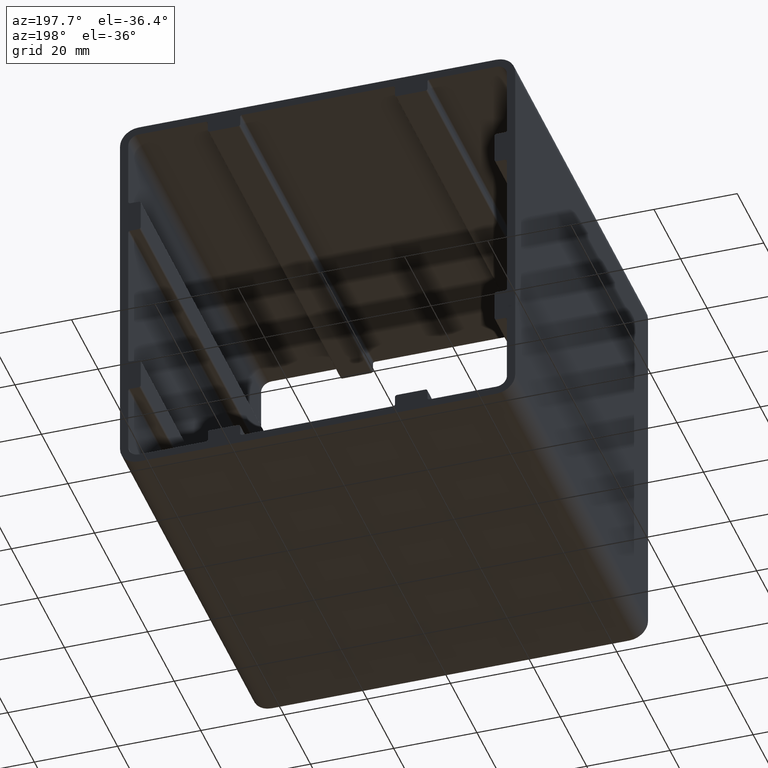
[diagram: clean part render]
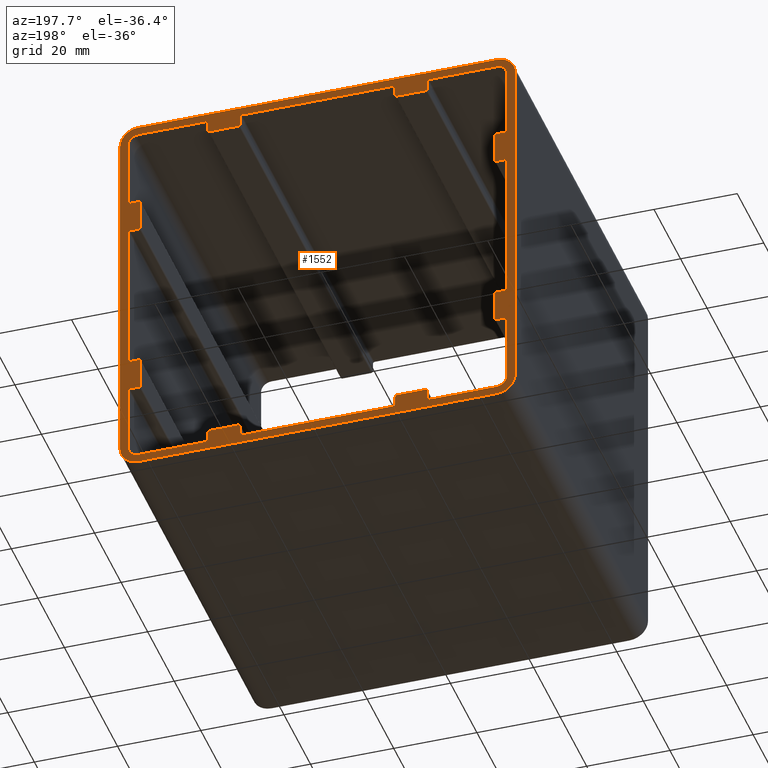
[diagram: same view with one face highlighted and labeled with its STEP entity id]
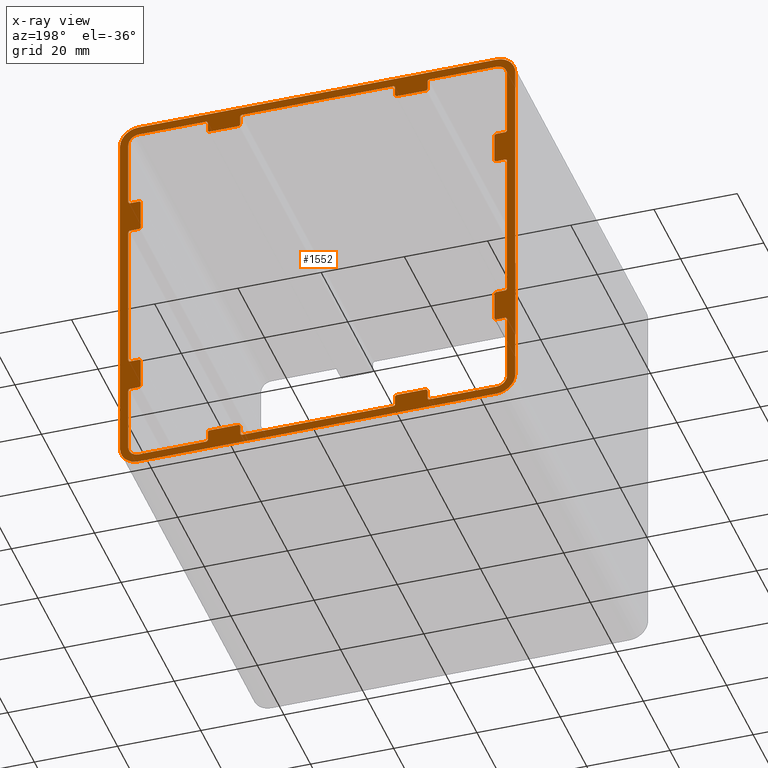
[diagram: x-ray of the same camera — body ghosted, the highlighted face saturated]
A machine part, auxiliary view. The second image highlights one B-rep face of the part: STEP entity #1552.
The next image is the same camera in x-ray: the body ghosted, the highlighted face saturated — about 0% of this face is hidden behind the body in this view.
In plain terms, the highlighted planar face has unit normal (0, 1, 0).
Its self-contained STEP definition (entity closure, byte-faithful):
#16=FACE_BOUND('',#150,.T.);
#20=PLANE('',#1698);
#66=FACE_OUTER_BOUND('',#149,.T.);
#149=EDGE_LOOP('',(#1129,#1130,#1131,#1132,#1133,#1134,#1135,#1136));
#150=EDGE_LOOP('',(#1137,#1138,#1139,#1140,#1141,#1142,#1143,#1144,#1145,
#1146,#1147,#1148,#1149,#1150,#1151,#1152,#1153,#1154,#1155,#1156,#1157,
#1158,#1159,#1160,#1161,#1162,#1163,#1164,#1165,#1166,#1167,#1168,#1169,
#1170,#1171,#1172,#1173,#1174,#1175,#1176,#1177,#1178,#1179,#1180,#1181,
#1182,#1183,#1184,#1185,#1186,#1187,#1188,#1189,#1190,#1191,#1192,#1193,
#1194,#1195,#1196,#1197,#1198,#1199,#1200,#1201,#1202,#1203,#1204,#1205,
#1206,#1207,#1208));
#229=LINE('',#2310,#389);
#271=LINE('',#2475,#431);
#275=LINE('',#2486,#435);
#276=LINE('',#2487,#436);
#277=LINE('',#2492,#437);
#278=LINE('',#2496,#438);
#279=LINE('',#2500,#439);
#280=LINE('',#2504,#440);
#281=LINE('',#2508,#441);
#282=LINE('',#2512,#442);
#283=LINE('',#2516,#443);
#284=LINE('',#2520,#444);
#285=LINE('',#2524,#445);
#286=LINE('',#2528,#446);
#287=LINE('',#2532,#447);
#288=LINE('',#2536,#448);
#289=LINE('',#2540,#449);
#290=LINE('',#2544,#450);
#291=LINE('',#2548,#451);
#292=LINE('',#2552,#452);
#293=LINE('',#2556,#453);
#294=LINE('',#2560,#454);
#295=LINE('',#2564,#455);
#296=LINE('',#2568,#456);
#297=LINE('',#2572,#457);
#298=LINE('',#2576,#458);
#299=LINE('',#2580,#459);
#300=LINE('',#2584,#460);
#301=LINE('',#2588,#461);
#302=LINE('',#2592,#462);
#303=LINE('',#2596,#463);
#304=LINE('',#2600,#464);
#305=LINE('',#2604,#465);
#306=LINE('',#2608,#466);
#307=LINE('',#2612,#467);
#308=LINE('',#2616,#468);
#309=LINE('',#2620,#469);
#310=LINE('',#2624,#470);
#311=LINE('',#2628,#471);
#312=LINE('',#2631,#472);
#389=VECTOR('',#1823,10.);
#431=VECTOR('',#1951,10.);
#435=VECTOR('',#1965,10.);
#436=VECTOR('',#1966,10.);
#437=VECTOR('',#1969,10.);
#438=VECTOR('',#1972,10.);
#439=VECTOR('',#1975,10.);
#440=VECTOR('',#1978,10.);
#441=VECTOR('',#1981,10.);
#442=VECTOR('',#1984,10.);
#443=VECTOR('',#1987,10.);
#444=VECTOR('',#1990,10.);
#445=VECTOR('',#1993,10.);
#446=VECTOR('',#1996,10.);
#447=VECTOR('',#1999,10.);
#448=VECTOR('',#2002,10.);
#449=VECTOR('',#2005,10.);
#450=VECTOR('',#2008,10.);
#451=VECTOR('',#2011,10.);
#452=VECTOR('',#2014,10.);
#453=VECTOR('',#2017,10.);
#454=VECTOR('',#2020,10.);
#455=VECTOR('',#2023,10.);
#456=VECTOR('',#2026,10.);
#457=VECTOR('',#2029,10.);
#458=VECTOR('',#2032,10.);
#459=VECTOR('',#2035,10.);
#460=VECTOR('',#2038,10.);
#461=VECTOR('',#2041,10.);
#462=VECTOR('',#2044,10.);
#463=VECTOR('',#2047,10.);
#464=VECTOR('',#2050,10.);
#465=VECTOR('',#2053,10.);
#466=VECTOR('',#2056,10.);
#467=VECTOR('',#2059,10.);
#468=VECTOR('',#2062,10.);
#469=VECTOR('',#2065,10.);
#470=VECTOR('',#2068,10.);
#471=VECTOR('',#2071,10.);
#472=VECTOR('',#2074,10.);
#545=CIRCLE('',#1648,4.5);
#586=CIRCLE('',#1692,4.5);
#587=CIRCLE('',#1695,4.5);
#588=CIRCLE('',#1697,4.5);
#589=CIRCLE('',#1699,0.5);
#590=CIRCLE('',#1700,0.5);
#591=CIRCLE('',#1701,0.5);
#592=CIRCLE('',#1702,2.5);
#593=CIRCLE('',#1703,0.5);
#594=CIRCLE('',#1704,0.5);
#595=CIRCLE('',#1705,0.5);
#596=CIRCLE('',#1706,0.5);
#597=CIRCLE('',#1707,0.5);
#598=CIRCLE('',#1708,0.5);
#599=CIRCLE('',#1709,0.5);
#600=CIRCLE('',#1710,0.5);
#601=CIRCLE('',#1711,2.5);
#602=CIRCLE('',#1712,0.5);
#603=CIRCLE('',#1713,0.5);
#604=CIRCLE('',#1714,0.5);
#605=CIRCLE('',#1715,0.5);
#606=CIRCLE('',#1716,0.5);
#607=CIRCLE('',#1717,0.5);
#608=CIRCLE('',#1718,0.5);
#609=CIRCLE('',#1719,0.5);
#610=CIRCLE('',#1720,2.5);
#611=CIRCLE('',#1721,0.5);
#612=CIRCLE('',#1722,0.5);
#613=CIRCLE('',#1723,0.5);
#614=CIRCLE('',#1724,0.5);
#615=CIRCLE('',#1725,0.5);
#616=CIRCLE('',#1726,0.5);
#617=CIRCLE('',#1727,0.5);
#618=CIRCLE('',#1728,0.5);
#619=CIRCLE('',#1729,2.5);
#620=CIRCLE('',#1730,0.5);
#621=CIRCLE('',#1731,0.5);
#622=CIRCLE('',#1732,0.5);
#623=CIRCLE('',#1733,0.5);
#624=CIRCLE('',#1734,0.5);
#625=VERTEX_POINT('',#2297);
#626=VERTEX_POINT('',#2298);
#630=VERTEX_POINT('',#2308);
#708=VERTEX_POINT('',#2468);
#709=VERTEX_POINT('',#2469);
#710=VERTEX_POINT('',#2474);
#711=VERTEX_POINT('',#2478);
#712=VERTEX_POINT('',#2482);
#713=VERTEX_POINT('',#2488);
#714=VERTEX_POINT('',#2489);
#715=VERTEX_POINT('',#2491);
#716=VERTEX_POINT('',#2493);
#717=VERTEX_POINT('',#2495);
#718=VERTEX_POINT('',#2497);
#719=VERTEX_POINT('',#2499);
#720=VERTEX_POINT('',#2501);
#721=VERTEX_POINT('',#2503);
#722=VERTEX_POINT('',#2505);
#723=VERTEX_POINT('',#2507);
#724=VERTEX_POINT('',#2509);
#725=VERTEX_POINT('',#2511);
#726=VERTEX_POINT('',#2513);
#727=VERTEX_POINT('',#2515);
#728=VERTEX_POINT('',#2517);
#729=VERTEX_POINT('',#2519);
#730=VERTEX_POINT('',#2521);
#731=VERTEX_POINT('',#2523);
#732=VERTEX_POINT('',#2525);
#733=VERTEX_POINT('',#2527);
#734=VERTEX_POINT('',#2529);
#735=VERTEX_POINT('',#2531);
#736=VERTEX_POINT('',#2533);
#737=VERTEX_POINT('',#2535);
#738=VERTEX_POINT('',#2537);
#739=VERTEX_POINT('',#2539);
#740=VERTEX_POINT('',#2541);
#741=VERTEX_POINT('',#2543);
#742=VERTEX_POINT('',#2545);
#743=VERTEX_POINT('',#2547);
#744=VERTEX_POINT('',#2549);
#745=VERTEX_POINT('',#2551);
#746=VERTEX_POINT('',#2553);
#747=VERTEX_POINT('',#2555);
#748=VERTEX_POINT('',#2557);
#749=VERTEX_POINT('',#2559);
#750=VERTEX_POINT('',#2561);
#751=VERTEX_POINT('',#2563);
#752=VERTEX_POINT('',#2565);
#753=VERTEX_POINT('',#2567);
#754=VERTEX_POINT('',#2569);
#755=VERTEX_POINT('',#2571);
#756=VERTEX_POINT('',#2573);
#757=VERTEX_POINT('',#2575);
#758=VERTEX_POINT('',#2577);
#759=VERTEX_POINT('',#2579);
#760=VERTEX_POINT('',#2581);
#761=VERTEX_POINT('',#2583);
#762=VERTEX_POINT('',#2585);
#763=VERTEX_POINT('',#2587);
#764=VERTEX_POINT('',#2589);
#765=VERTEX_POINT('',#2591);
#766=VERTEX_POINT('',#2593);
#767=VERTEX_POINT('',#2595);
#768=VERTEX_POINT('',#2597);
#769=VERTEX_POINT('',#2599);
#770=VERTEX_POINT('',#2601);
#771=VERTEX_POINT('',#2603);
#772=VERTEX_POINT('',#2605);
#773=VERTEX_POINT('',#2607);
#774=VERTEX_POINT('',#2609);
#775=VERTEX_POINT('',#2611);
#776=VERTEX_POINT('',#2613);
#777=VERTEX_POINT('',#2615);
#778=VERTEX_POINT('',#2617);
#779=VERTEX_POINT('',#2619);
#780=VERTEX_POINT('',#2621);
#781=VERTEX_POINT('',#2623);
#782=VERTEX_POINT('',#2625);
#783=VERTEX_POINT('',#2627);
#784=VERTEX_POINT('',#2629);
#785=EDGE_CURVE('',#625,#626,#545,.T.);
#791=EDGE_CURVE('',#625,#630,#229,.T.);
#870=EDGE_CURVE('',#708,#709,#586,.T.);
#873=EDGE_CURVE('',#710,#709,#271,.T.);
#875=EDGE_CURVE('',#710,#711,#587,.T.);
#877=EDGE_CURVE('',#712,#630,#588,.T.);
#879=EDGE_CURVE('',#712,#711,#275,.T.);
#880=EDGE_CURVE('',#708,#626,#276,.T.);
#881=EDGE_CURVE('',#713,#714,#589,.T.);
#882=EDGE_CURVE('',#713,#715,#277,.T.);
#883=EDGE_CURVE('',#716,#715,#590,.T.);
#884=EDGE_CURVE('',#716,#717,#278,.T.);
#885=EDGE_CURVE('',#718,#717,#591,.T.);
#886=EDGE_CURVE('',#718,#719,#279,.T.);
#887=EDGE_CURVE('',#720,#719,#592,.T.);
#888=EDGE_CURVE('',#720,#721,#280,.T.);
#889=EDGE_CURVE('',#722,#721,#593,.T.);
#890=EDGE_CURVE('',#722,#723,#281,.T.);
#891=EDGE_CURVE('',#724,#723,#594,.T.);
#892=EDGE_CURVE('',#724,#725,#282,.T.);
#893=EDGE_CURVE('',#726,#725,#595,.T.);
#894=EDGE_CURVE('',#726,#727,#283,.T.);
#895=EDGE_CURVE('',#728,#727,#596,.T.);
#896=EDGE_CURVE('',#728,#729,#284,.T.);
#897=EDGE_CURVE('',#730,#729,#597,.T.);
#898=EDGE_CURVE('',#730,#731,#285,.T.);
#899=EDGE_CURVE('',#732,#731,#598,.T.);
#900=EDGE_CURVE('',#732,#733,#286,.T.);
#901=EDGE_CURVE('',#734,#733,#599,.T.);
#902=EDGE_CURVE('',#734,#735,#287,.T.);
#903=EDGE_CURVE('',#736,#735,#600,.T.);
#904=EDGE_CURVE('',#736,#737,#288,.T.);
#905=EDGE_CURVE('',#738,#737,#601,.T.);
#906=EDGE_CURVE('',#738,#739,#289,.T.);
#907=EDGE_CURVE('',#740,#739,#602,.T.);
#908=EDGE_CURVE('',#740,#741,#290,.T.);
#909=EDGE_CURVE('',#742,#741,#603,.T.);
#910=EDGE_CURVE('',#742,#743,#291,.T.);
#911=EDGE_CURVE('',#744,#743,#604,.T.);
#912=EDGE_CURVE('',#744,#745,#292,.T.);
#913=EDGE_CURVE('',#746,#745,#605,.T.);
#914=EDGE_CURVE('',#746,#747,#293,.T.);
#915=EDGE_CURVE('',#748,#747,#606,.T.);
#916=EDGE_CURVE('',#748,#749,#294,.T.);
#917=EDGE_CURVE('',#750,#749,#607,.T.);
#918=EDGE_CURVE('',#750,#751,#295,.T.);
#919=EDGE_CURVE('',#752,#751,#608,.T.);
#920=EDGE_CURVE('',#752,#753,#296,.T.);
#921=EDGE_CURVE('',#754,#753,#609,.T.);
#922=EDGE_CURVE('',#754,#755,#297,.T.);
#923=EDGE_CURVE('',#756,#755,#610,.T.);
#924=EDGE_CURVE('',#756,#757,#298,.T.);
#925=EDGE_CURVE('',#758,#757,#611,.T.);
#926=EDGE_CURVE('',#758,#759,#299,.T.);
#927=EDGE_CURVE('',#760,#759,#612,.T.);
#928=EDGE_CURVE('',#760,#761,#300,.T.);
#929=EDGE_CURVE('',#762,#761,#613,.T.);
#930=EDGE_CURVE('',#762,#763,#301,.T.);
#931=EDGE_CURVE('',#764,#763,#614,.T.);
#932=EDGE_CURVE('',#764,#765,#302,.T.);
#933=EDGE_CURVE('',#766,#765,#615,.T.);
#934=EDGE_CURVE('',#766,#767,#303,.T.);
#935=EDGE_CURVE('',#768,#767,#616,.T.);
#936=EDGE_CURVE('',#768,#769,#304,.T.);
#937=EDGE_CURVE('',#770,#769,#617,.T.);
#938=EDGE_CURVE('',#770,#771,#305,.T.);
#939=EDGE_CURVE('',#772,#771,#618,.T.);
#940=EDGE_CURVE('',#772,#773,#306,.T.);
#941=EDGE_CURVE('',#774,#773,#619,.T.);
#942=EDGE_CURVE('',#774,#775,#307,.T.);
#943=EDGE_CURVE('',#776,#775,#620,.T.);
#944=EDGE_CURVE('',#776,#777,#308,.T.);
#945=EDGE_CURVE('',#778,#777,#621,.T.);
#946=EDGE_CURVE('',#778,#779,#309,.T.);
#947=EDGE_CURVE('',#780,#779,#622,.T.);
#948=EDGE_CURVE('',#780,#781,#310,.T.);
#949=EDGE_CURVE('',#782,#781,#623,.T.);
#950=EDGE_CURVE('',#782,#783,#311,.T.);
#951=EDGE_CURVE('',#784,#783,#624,.T.);
#952=EDGE_CURVE('',#784,#714,#312,.T.);
#1129=ORIENTED_EDGE('',*,*,#785,.F.);
#1130=ORIENTED_EDGE('',*,*,#791,.T.);
#1131=ORIENTED_EDGE('',*,*,#877,.F.);
#1132=ORIENTED_EDGE('',*,*,#879,.T.);
#1133=ORIENTED_EDGE('',*,*,#875,.F.);
#1134=ORIENTED_EDGE('',*,*,#873,.T.);
#1135=ORIENTED_EDGE('',*,*,#870,.F.);
#1136=ORIENTED_EDGE('',*,*,#880,.T.);
#1137=ORIENTED_EDGE('',*,*,#881,.F.);
#1138=ORIENTED_EDGE('',*,*,#882,.T.);
#1139=ORIENTED_EDGE('',*,*,#883,.F.);
#1140=ORIENTED_EDGE('',*,*,#884,.T.);
#1141=ORIENTED_EDGE('',*,*,#885,.F.);
#1142=ORIENTED_EDGE('',*,*,#886,.T.);
#1143=ORIENTED_EDGE('',*,*,#887,.F.);
#1144=ORIENTED_EDGE('',*,*,#888,.T.);
#1145=ORIENTED_EDGE('',*,*,#889,.F.);
#1146=ORIENTED_EDGE('',*,*,#890,.T.);
#1147=ORIENTED_EDGE('',*,*,#891,.F.);
#1148=ORIENTED_EDGE('',*,*,#892,.T.);
#1149=ORIENTED_EDGE('',*,*,#893,.F.);
#1150=ORIENTED_EDGE('',*,*,#894,.T.);
#1151=ORIENTED_EDGE('',*,*,#895,.F.);
#1152=ORIENTED_EDGE('',*,*,#896,.T.);
#1153=ORIENTED_EDGE('',*,*,#897,.F.);
#1154=ORIENTED_EDGE('',*,*,#898,.T.);
#1155=ORIENTED_EDGE('',*,*,#899,.F.);
#1156=ORIENTED_EDGE('',*,*,#900,.T.);
#1157=ORIENTED_EDGE('',*,*,#901,.F.);
#1158=ORIENTED_EDGE('',*,*,#902,.T.);
#1159=ORIENTED_EDGE('',*,*,#903,.F.);
#1160=ORIENTED_EDGE('',*,*,#904,.T.);
#1161=ORIENTED_EDGE('',*,*,#905,.F.);
#1162=ORIENTED_EDGE('',*,*,#906,.T.);
#1163=ORIENTED_EDGE('',*,*,#907,.F.);
#1164=ORIENTED_EDGE('',*,*,#908,.T.);
#1165=ORIENTED_EDGE('',*,*,#909,.F.);
#1166=ORIENTED_EDGE('',*,*,#910,.T.);
#1167=ORIENTED_EDGE('',*,*,#911,.F.);
#1168=ORIENTED_EDGE('',*,*,#912,.T.);
#1169=ORIENTED_EDGE('',*,*,#913,.F.);
#1170=ORIENTED_EDGE('',*,*,#914,.T.);
#1171=ORIENTED_EDGE('',*,*,#915,.F.);
#1172=ORIENTED_EDGE('',*,*,#916,.T.);
#1173=ORIENTED_EDGE('',*,*,#917,.F.);
#1174=ORIENTED_EDGE('',*,*,#918,.T.);
#1175=ORIENTED_EDGE('',*,*,#919,.F.);
#1176=ORIENTED_EDGE('',*,*,#920,.T.);
#1177=ORIENTED_EDGE('',*,*,#921,.F.);
#1178=ORIENTED_EDGE('',*,*,#922,.T.);
#1179=ORIENTED_EDGE('',*,*,#923,.F.);
#1180=ORIENTED_EDGE('',*,*,#924,.T.);
#1181=ORIENTED_EDGE('',*,*,#925,.F.);
#1182=ORIENTED_EDGE('',*,*,#926,.T.);
#1183=ORIENTED_EDGE('',*,*,#927,.F.);
#1184=ORIENTED_EDGE('',*,*,#928,.T.);
#1185=ORIENTED_EDGE('',*,*,#929,.F.);
#1186=ORIENTED_EDGE('',*,*,#930,.T.);
#1187=ORIENTED_EDGE('',*,*,#931,.F.);
#1188=ORIENTED_EDGE('',*,*,#932,.T.);
#1189=ORIENTED_EDGE('',*,*,#933,.F.);
#1190=ORIENTED_EDGE('',*,*,#934,.T.);
#1191=ORIENTED_EDGE('',*,*,#935,.F.);
#1192=ORIENTED_EDGE('',*,*,#936,.T.);
#1193=ORIENTED_EDGE('',*,*,#937,.F.);
#1194=ORIENTED_EDGE('',*,*,#938,.T.);
#1195=ORIENTED_EDGE('',*,*,#939,.F.);
#1196=ORIENTED_EDGE('',*,*,#940,.T.);
#1197=ORIENTED_EDGE('',*,*,#941,.F.);
#1198=ORIENTED_EDGE('',*,*,#942,.T.);
#1199=ORIENTED_EDGE('',*,*,#943,.F.);
#1200=ORIENTED_EDGE('',*,*,#944,.T.);
#1201=ORIENTED_EDGE('',*,*,#945,.F.);
#1202=ORIENTED_EDGE('',*,*,#946,.T.);
#1203=ORIENTED_EDGE('',*,*,#947,.F.);
#1204=ORIENTED_EDGE('',*,*,#948,.T.);
#1205=ORIENTED_EDGE('',*,*,#949,.F.);
#1206=ORIENTED_EDGE('',*,*,#950,.T.);
#1207=ORIENTED_EDGE('',*,*,#951,.F.);
#1208=ORIENTED_EDGE('',*,*,#952,.T.);
#1552=ADVANCED_FACE('',(#66,#16),#20,.T.);
#1648=AXIS2_PLACEMENT_3D('',#2299,#1813,#1814);
#1692=AXIS2_PLACEMENT_3D('',#2470,#1945,#1946);
#1695=AXIS2_PLACEMENT_3D('',#2479,#1955,#1956);
#1697=AXIS2_PLACEMENT_3D('',#2483,#1960,#1961);
#1698=AXIS2_PLACEMENT_3D('',#2485,#1963,#1964);
#1699=AXIS2_PLACEMENT_3D('',#2490,#1967,#1968);
#1700=AXIS2_PLACEMENT_3D('',#2494,#1970,#1971);
#1701=AXIS2_PLACEMENT_3D('',#2498,#1973,#1974);
#1702=AXIS2_PLACEMENT_3D('',#2502,#1976,#1977);
#1703=AXIS2_PLACEMENT_3D('',#2506,#1979,#1980);
#1704=AXIS2_PLACEMENT_3D('',#2510,#1982,#1983);
#1705=AXIS2_PLACEMENT_3D('',#2514,#1985,#1986);
#1706=AXIS2_PLACEMENT_3D('',#2518,#1988,#1989);
#1707=AXIS2_PLACEMENT_3D('',#2522,#1991,#1992);
#1708=AXIS2_PLACEMENT_3D('',#2526,#1994,#1995);
#1709=AXIS2_PLACEMENT_3D('',#2530,#1997,#1998);
#1710=AXIS2_PLACEMENT_3D('',#2534,#2000,#2001);
#1711=AXIS2_PLACEMENT_3D('',#2538,#2003,#2004);
#1712=AXIS2_PLACEMENT_3D('',#2542,#2006,#2007);
#1713=AXIS2_PLACEMENT_3D('',#2546,#2009,#2010);
#1714=AXIS2_PLACEMENT_3D('',#2550,#2012,#2013);
#1715=AXIS2_PLACEMENT_3D('',#2554,#2015,#2016);
#1716=AXIS2_PLACEMENT_3D('',#2558,#2018,#2019);
#1717=AXIS2_PLACEMENT_3D('',#2562,#2021,#2022);
#1718=AXIS2_PLACEMENT_3D('',#2566,#2024,#2025);
#1719=AXIS2_PLACEMENT_3D('',#2570,#2027,#2028);
#1720=AXIS2_PLACEMENT_3D('',#2574,#2030,#2031);
#1721=AXIS2_PLACEMENT_3D('',#2578,#2033,#2034);
#1722=AXIS2_PLACEMENT_3D('',#2582,#2036,#2037);
#1723=AXIS2_PLACEMENT_3D('',#2586,#2039,#2040);
#1724=AXIS2_PLACEMENT_3D('',#2590,#2042,#2043);
#1725=AXIS2_PLACEMENT_3D('',#2594,#2045,#2046);
#1726=AXIS2_PLACEMENT_3D('',#2598,#2048,#2049);
#1727=AXIS2_PLACEMENT_3D('',#2602,#2051,#2052);
#1728=AXIS2_PLACEMENT_3D('',#2606,#2054,#2055);
#1729=AXIS2_PLACEMENT_3D('',#2610,#2057,#2058);
#1730=AXIS2_PLACEMENT_3D('',#2614,#2060,#2061);
#1731=AXIS2_PLACEMENT_3D('',#2618,#2063,#2064);
#1732=AXIS2_PLACEMENT_3D('',#2622,#2066,#2067);
#1733=AXIS2_PLACEMENT_3D('',#2626,#2069,#2070);
#1734=AXIS2_PLACEMENT_3D('',#2630,#2072,#2073);
#1813=DIRECTION('center_axis',(0.,-1.,0.));
#1814=DIRECTION('ref_axis',(-0.707106781186549,0.,-0.707106781186546));
#1823=DIRECTION('',(0.,0.,1.));
#1945=DIRECTION('center_axis',(0.,-1.,0.));
#1946=DIRECTION('ref_axis',(0.707106781186548,0.,-0.707106781186548));
#1951=DIRECTION('',(0.,0.,-1.));
#1955=DIRECTION('center_axis',(0.,-1.,0.));
#1956=DIRECTION('ref_axis',(0.707106781186547,0.,0.707106781186547));
#1960=DIRECTION('center_axis',(0.,-1.,0.));
#1961=DIRECTION('ref_axis',(-0.707106781186548,0.,0.707106781186548));
#1963=DIRECTION('center_axis',(0.,1.,0.));
#1964=DIRECTION('ref_axis',(0.,0.,1.));
#1965=DIRECTION('',(1.,0.,9.34924652315921E-17));
#1966=DIRECTION('',(-1.,0.,9.34924652315921E-17));
#1967=DIRECTION('center_axis',(0.,-1.,0.));
#1968=DIRECTION('ref_axis',(0.707106781186544,0.,-0.707106781186551));
#1969=DIRECTION('',(-1.,0.,0.));
#1970=DIRECTION('center_axis',(0.,-1.,0.));
#1971=DIRECTION('ref_axis',(-0.707106781186541,0.,-0.707106781186554));
#1972=DIRECTION('',(0.,0.,1.));
#1973=DIRECTION('center_axis',(0.,1.,0.));
#1974=DIRECTION('ref_axis',(0.707106781186554,0.,0.707106781186541));
#1975=DIRECTION('',(-1.,0.,0.));
#1976=DIRECTION('center_axis',(0.,1.,0.));
#1977=DIRECTION('ref_axis',(-0.707106781186547,0.,0.707106781186547));
#1978=DIRECTION('',(0.,0.,-1.));
#1979=DIRECTION('center_axis',(0.,1.,0.));
#1980=DIRECTION('ref_axis',(-0.70710678118656,0.,-0.707106781186535));
#1981=DIRECTION('',(1.,0.,0.));
#1982=DIRECTION('center_axis',(0.,-1.,0.));
#1983=DIRECTION('ref_axis',(0.707106781186541,0.,0.707106781186554));
#1984=DIRECTION('',(0.,0.,-1.));
#1985=DIRECTION('center_axis',(0.,-1.,0.));
#1986=DIRECTION('ref_axis',(0.707106781186538,0.,-0.707106781186557));
#1987=DIRECTION('',(-1.,0.,-7.40148683083438E-16));
#1988=DIRECTION('center_axis',(0.,1.,0.));
#1989=DIRECTION('ref_axis',(-0.707106781186551,0.,0.707106781186544));
#1990=DIRECTION('',(0.,0.,-1.));
#1991=DIRECTION('center_axis',(0.,1.,0.));
#1992=DIRECTION('ref_axis',(-0.707106781186554,0.,-0.707106781186541));
#1993=DIRECTION('',(1.,0.,-7.40148683083438E-16));
#1994=DIRECTION('center_axis',(0.,-1.,0.));
#1995=DIRECTION('ref_axis',(0.707106781186541,0.,0.707106781186554));
#1996=DIRECTION('',(0.,0.,-1.));
#1997=DIRECTION('center_axis',(0.,-1.,0.));
#1998=DIRECTION('ref_axis',(0.707106781186541,0.,-0.707106781186554));
#1999=DIRECTION('',(-1.,0.,1.48029736616688E-15));
#2000=DIRECTION('center_axis',(0.,1.,0.));
#2001=DIRECTION('ref_axis',(-0.707106781186554,0.,0.707106781186541));
#2002=DIRECTION('',(0.,0.,-1.));
#2003=DIRECTION('center_axis',(0.,1.,0.));
#2004=DIRECTION('ref_axis',(-0.707106781186547,0.,-0.707106781186547));
#2005=DIRECTION('',(1.,0.,-4.65014879424149E-16));
#2006=DIRECTION('center_axis',(0.,1.,0.));
#2007=DIRECTION('ref_axis',(0.707106781186548,0.,-0.707106781186548));
#2008=DIRECTION('',(0.,0.,1.));
#2009=DIRECTION('center_axis',(0.,-1.,0.));
#2010=DIRECTION('ref_axis',(-0.707106781186541,0.,0.707106781186554));
#2011=DIRECTION('',(1.,0.,0.));
#2012=DIRECTION('center_axis',(0.,-1.,0.));
#2013=DIRECTION('ref_axis',(0.707106781186541,0.,0.707106781186554));
#2014=DIRECTION('',(0.,0.,-1.));
#2015=DIRECTION('center_axis',(0.,1.,0.));
#2016=DIRECTION('ref_axis',(-0.707106781186544,0.,-0.707106781186551));
#2017=DIRECTION('',(1.,0.,-2.38757639704335E-16));
#2018=DIRECTION('center_axis',(0.,1.,0.));
#2019=DIRECTION('ref_axis',(0.707106781186554,0.,-0.707106781186541));
#2020=DIRECTION('',(0.,0.,1.));
#2021=DIRECTION('center_axis',(0.,-1.,0.));
#2022=DIRECTION('ref_axis',(-0.707106781186541,0.,0.707106781186554));
#2023=DIRECTION('',(1.,0.,0.));
#2024=DIRECTION('center_axis',(0.,-1.,0.));
#2025=DIRECTION('ref_axis',(0.707106781186541,0.,0.707106781186554));
#2026=DIRECTION('',(-1.48029736616687E-15,0.,-1.));
#2027=DIRECTION('center_axis',(0.,1.,0.));
#2028=DIRECTION('ref_axis',(-0.707106781186554,0.,-0.707106781186541));
#2029=DIRECTION('',(1.,0.,9.30029758848299E-16));
#2030=DIRECTION('center_axis',(0.,1.,0.));
#2031=DIRECTION('ref_axis',(0.707106781186547,0.,-0.707106781186547));
#2032=DIRECTION('',(0.,0.,1.));
#2033=DIRECTION('center_axis',(0.,1.,0.));
#2034=DIRECTION('ref_axis',(0.707106781186554,0.,0.707106781186541));
#2035=DIRECTION('',(-1.,0.,0.));
#2036=DIRECTION('center_axis',(0.,-1.,0.));
#2037=DIRECTION('ref_axis',(-0.707106781186541,0.,-0.707106781186554));
#2038=DIRECTION('',(0.,0.,1.));
#2039=DIRECTION('center_axis',(0.,-1.,0.));
#2040=DIRECTION('ref_axis',(-0.707106781186541,0.,0.707106781186554));
#2041=DIRECTION('',(1.,0.,0.));
#2042=DIRECTION('center_axis',(0.,1.,0.));
#2043=DIRECTION('ref_axis',(0.707106781186554,0.,-0.707106781186541));
#2044=DIRECTION('',(-2.38757639704335E-16,0.,1.));
#2045=DIRECTION('center_axis',(0.,1.,0.));
#2046=DIRECTION('ref_axis',(0.707106781186538,0.,0.707106781186557));
#2047=DIRECTION('',(-1.,0.,5.18104078158408E-15));
#2048=DIRECTION('center_axis',(0.,-1.,0.));
#2049=DIRECTION('ref_axis',(-0.707106781186541,0.,-0.707106781186554));
#2050=DIRECTION('',(0.,0.,1.));
#2051=DIRECTION('center_axis',(0.,-1.,0.));
#2052=DIRECTION('ref_axis',(-0.707106781186541,0.,0.707106781186554));
#2053=DIRECTION('',(1.,0.,4.44089209850064E-15));
#2054=DIRECTION('center_axis',(0.,1.,0.));
#2055=DIRECTION('ref_axis',(0.707106781186541,0.,-0.707106781186554));
#2056=DIRECTION('',(1.8600595176966E-15,0.,1.));
#2057=DIRECTION('center_axis',(0.,1.,0.));
#2058=DIRECTION('ref_axis',(0.70710678118655,0.,0.707106781186545));
#2059=DIRECTION('',(-1.,0.,0.));
#2060=DIRECTION('center_axis',(0.,1.,0.));
#2061=DIRECTION('ref_axis',(-0.707106781186554,0.,0.707106781186541));
#2062=DIRECTION('',(0.,0.,-1.));
#2063=DIRECTION('center_axis',(0.,-1.,0.));
#2064=DIRECTION('ref_axis',(0.707106781186541,0.,-0.707106781186554));
#2065=DIRECTION('',(-1.,0.,0.));
#2066=DIRECTION('center_axis',(0.,-1.,0.));
#2067=DIRECTION('ref_axis',(-0.707106781186541,0.,-0.707106781186554));
#2068=DIRECTION('',(0.,0.,1.));
#2069=DIRECTION('center_axis',(0.,1.,0.));
#2070=DIRECTION('ref_axis',(0.707106781186554,0.,0.707106781186541));
#2071=DIRECTION('',(-1.,0.,0.));
#2072=DIRECTION('center_axis',(0.,1.,0.));
#2073=DIRECTION('ref_axis',(-0.707106781186557,0.,0.707106781186538));
#2074=DIRECTION('',(0.,0.,-1.));
#2297=CARTESIAN_POINT('',(-47.5,100.,-43.));
#2298=CARTESIAN_POINT('',(-43.,100.,-47.5));
#2299=CARTESIAN_POINT('Origin',(-43.,100.,-43.));
#2308=CARTESIAN_POINT('',(-47.5,100.,43.));
#2310=CARTESIAN_POINT('',(-47.5,100.,-47.5));
#2468=CARTESIAN_POINT('',(43.,100.,-47.5));
#2469=CARTESIAN_POINT('',(47.5,100.,-43.));
#2470=CARTESIAN_POINT('Origin',(43.,100.,-43.));
#2474=CARTESIAN_POINT('',(47.5,100.,43.));
#2475=CARTESIAN_POINT('',(47.5,100.,47.5));
#2478=CARTESIAN_POINT('',(43.,100.,47.5));
#2479=CARTESIAN_POINT('Origin',(43.,100.,43.));
#2482=CARTESIAN_POINT('',(-43.,100.,47.5));
#2483=CARTESIAN_POINT('Origin',(-43.,100.,43.));
#2485=CARTESIAN_POINT('Origin',(0.,100.,0.));
#2486=CARTESIAN_POINT('',(-47.5,100.,47.5));
#2487=CARTESIAN_POINT('',(47.5,100.,-47.5));
#2488=CARTESIAN_POINT('',(-19.1,100.,42.5));
#2489=CARTESIAN_POINT('',(-18.6,100.,43.));
#2490=CARTESIAN_POINT('Origin',(-19.1,100.,43.));
#2491=CARTESIAN_POINT('',(-25.9,100.,42.5));
#2492=CARTESIAN_POINT('',(-9.3,100.,42.5));
#2493=CARTESIAN_POINT('',(-26.4,100.,43.));
#2494=CARTESIAN_POINT('Origin',(-25.9,100.,43.));
#2495=CARTESIAN_POINT('',(-26.4,100.,45.));
#2496=CARTESIAN_POINT('',(-26.4,100.,21.25));
#2497=CARTESIAN_POINT('',(-26.9,100.,45.5));
#2498=CARTESIAN_POINT('Origin',(-26.9,100.,45.));
#2499=CARTESIAN_POINT('',(-43.,100.,45.5));
#2500=CARTESIAN_POINT('',(-13.2,100.,45.5));
#2501=CARTESIAN_POINT('',(-45.5,100.,43.));
#2502=CARTESIAN_POINT('Origin',(-43.,100.,43.));
#2503=CARTESIAN_POINT('',(-45.5,100.,26.9));
#2504=CARTESIAN_POINT('',(-45.5,100.,22.75));
#2505=CARTESIAN_POINT('',(-45.,100.,26.4));
#2506=CARTESIAN_POINT('Origin',(-45.,100.,26.9));
#2507=CARTESIAN_POINT('',(-43.,100.,26.4));
#2508=CARTESIAN_POINT('',(-22.75,100.,26.4));
#2509=CARTESIAN_POINT('',(-42.5,100.,25.9));
#2510=CARTESIAN_POINT('Origin',(-43.,100.,25.9));
#2511=CARTESIAN_POINT('',(-42.5,100.,19.1));
#2512=CARTESIAN_POINT('',(-42.5,100.,13.2));
#2513=CARTESIAN_POINT('',(-43.,100.,18.6));
#2514=CARTESIAN_POINT('Origin',(-43.,100.,19.1));
#2515=CARTESIAN_POINT('',(-45.,100.,18.6));
#2516=CARTESIAN_POINT('',(-21.25,100.,18.6));
#2517=CARTESIAN_POINT('',(-45.5,100.,18.1));
#2518=CARTESIAN_POINT('Origin',(-45.,100.,18.1));
#2519=CARTESIAN_POINT('',(-45.5,100.,-18.1));
#2520=CARTESIAN_POINT('',(-45.5,100.,9.3));
#2521=CARTESIAN_POINT('',(-45.,100.,-18.6));
#2522=CARTESIAN_POINT('Origin',(-45.,100.,-18.1));
#2523=CARTESIAN_POINT('',(-43.,100.,-18.6));
#2524=CARTESIAN_POINT('',(-22.75,100.,-18.6));
#2525=CARTESIAN_POINT('',(-42.5,100.,-19.1));
#2526=CARTESIAN_POINT('Origin',(-43.,100.,-19.1));
#2527=CARTESIAN_POINT('',(-42.5,100.,-25.9));
#2528=CARTESIAN_POINT('',(-42.5,100.,-9.3));
#2529=CARTESIAN_POINT('',(-43.,100.,-26.4));
#2530=CARTESIAN_POINT('Origin',(-43.,100.,-25.9));
#2531=CARTESIAN_POINT('',(-45.,100.,-26.4));
#2532=CARTESIAN_POINT('',(-21.25,100.,-26.4));
#2533=CARTESIAN_POINT('',(-45.5,100.,-26.9));
#2534=CARTESIAN_POINT('Origin',(-45.,100.,-26.9));
#2535=CARTESIAN_POINT('',(-45.5,100.,-43.));
#2536=CARTESIAN_POINT('',(-45.5,100.,-13.2));
#2537=CARTESIAN_POINT('',(-43.,100.,-45.5));
#2538=CARTESIAN_POINT('Origin',(-43.,100.,-43.));
#2539=CARTESIAN_POINT('',(-26.9,100.,-45.5));
#2540=CARTESIAN_POINT('',(-22.75,100.,-45.5));
#2541=CARTESIAN_POINT('',(-26.4,100.,-45.));
#2542=CARTESIAN_POINT('Origin',(-26.9,100.,-45.));
#2543=CARTESIAN_POINT('',(-26.4,100.,-43.));
#2544=CARTESIAN_POINT('',(-26.4,100.,-22.75));
#2545=CARTESIAN_POINT('',(-25.9,100.,-42.5));
#2546=CARTESIAN_POINT('Origin',(-25.9,100.,-43.));
#2547=CARTESIAN_POINT('',(-19.1,100.,-42.5));
#2548=CARTESIAN_POINT('',(-13.2,100.,-42.5));
#2549=CARTESIAN_POINT('',(-18.6,100.,-43.));
#2550=CARTESIAN_POINT('Origin',(-19.1,100.,-43.));
#2551=CARTESIAN_POINT('',(-18.6,100.,-45.));
#2552=CARTESIAN_POINT('',(-18.6,100.,-21.25));
#2553=CARTESIAN_POINT('',(-18.1,100.,-45.5));
#2554=CARTESIAN_POINT('Origin',(-18.1,100.,-45.));
#2555=CARTESIAN_POINT('',(18.1,100.,-45.5));
#2556=CARTESIAN_POINT('',(-9.3,100.,-45.5));
#2557=CARTESIAN_POINT('',(18.6,100.,-45.));
#2558=CARTESIAN_POINT('Origin',(18.1,100.,-45.));
#2559=CARTESIAN_POINT('',(18.6,100.,-43.));
#2560=CARTESIAN_POINT('',(18.6,100.,-22.75));
#2561=CARTESIAN_POINT('',(19.1,100.,-42.5));
#2562=CARTESIAN_POINT('Origin',(19.1,100.,-43.));
#2563=CARTESIAN_POINT('',(25.9,100.,-42.5));
#2564=CARTESIAN_POINT('',(9.3,100.,-42.5));
#2565=CARTESIAN_POINT('',(26.4,100.,-43.));
#2566=CARTESIAN_POINT('Origin',(25.9,100.,-43.));
#2567=CARTESIAN_POINT('',(26.4,100.,-45.));
#2568=CARTESIAN_POINT('',(26.4,100.,-21.25));
#2569=CARTESIAN_POINT('',(26.9,100.,-45.5));
#2570=CARTESIAN_POINT('Origin',(26.9,100.,-45.));
#2571=CARTESIAN_POINT('',(43.,100.,-45.5));
#2572=CARTESIAN_POINT('',(13.2,100.,-45.5));
#2573=CARTESIAN_POINT('',(45.5,100.,-43.));
#2574=CARTESIAN_POINT('Origin',(43.,100.,-43.));
#2575=CARTESIAN_POINT('',(45.5,100.,-26.9));
#2576=CARTESIAN_POINT('',(45.5,100.,-22.75));
#2577=CARTESIAN_POINT('',(45.,100.,-26.4));
#2578=CARTESIAN_POINT('Origin',(45.,100.,-26.9));
#2579=CARTESIAN_POINT('',(43.,100.,-26.4));
#2580=CARTESIAN_POINT('',(22.75,100.,-26.4));
#2581=CARTESIAN_POINT('',(42.5,100.,-25.9));
#2582=CARTESIAN_POINT('Origin',(43.,100.,-25.9));
#2583=CARTESIAN_POINT('',(42.5,100.,-19.1));
#2584=CARTESIAN_POINT('',(42.5,100.,-13.2));
#2585=CARTESIAN_POINT('',(43.,100.,-18.6));
#2586=CARTESIAN_POINT('Origin',(43.,100.,-19.1));
#2587=CARTESIAN_POINT('',(45.,100.,-18.6));
#2588=CARTESIAN_POINT('',(21.25,100.,-18.6));
#2589=CARTESIAN_POINT('',(45.5,100.,-18.1));
#2590=CARTESIAN_POINT('Origin',(45.,100.,-18.1));
#2591=CARTESIAN_POINT('',(45.5,100.,18.1));
#2592=CARTESIAN_POINT('',(45.5,100.,-9.3));
#2593=CARTESIAN_POINT('',(45.,100.,18.6));
#2594=CARTESIAN_POINT('Origin',(45.,100.,18.1));
#2595=CARTESIAN_POINT('',(43.,100.,18.6));
#2596=CARTESIAN_POINT('',(22.75,100.,18.6000000000001));
#2597=CARTESIAN_POINT('',(42.5,100.,19.1));
#2598=CARTESIAN_POINT('Origin',(43.,100.,19.1));
#2599=CARTESIAN_POINT('',(42.5,100.,25.9));
#2600=CARTESIAN_POINT('',(42.5,100.,9.3));
#2601=CARTESIAN_POINT('',(43.,100.,26.4));
#2602=CARTESIAN_POINT('Origin',(43.,100.,25.9));
#2603=CARTESIAN_POINT('',(45.,100.,26.4));
#2604=CARTESIAN_POINT('',(21.2499999999999,100.,26.3999999999999));
#2605=CARTESIAN_POINT('',(45.5,100.,26.9));
#2606=CARTESIAN_POINT('Origin',(45.,100.,26.9));
#2607=CARTESIAN_POINT('',(45.5,100.,43.));
#2608=CARTESIAN_POINT('',(45.5,100.,13.2));
#2609=CARTESIAN_POINT('',(43.,100.,45.5));
#2610=CARTESIAN_POINT('Origin',(43.,100.,43.));
#2611=CARTESIAN_POINT('',(26.9,100.,45.5));
#2612=CARTESIAN_POINT('',(22.75,100.,45.5));
#2613=CARTESIAN_POINT('',(26.4,100.,45.));
#2614=CARTESIAN_POINT('Origin',(26.9,100.,45.));
#2615=CARTESIAN_POINT('',(26.4,100.,43.));
#2616=CARTESIAN_POINT('',(26.4,100.,22.75));
#2617=CARTESIAN_POINT('',(25.9,100.,42.5));
#2618=CARTESIAN_POINT('Origin',(25.9,100.,43.));
#2619=CARTESIAN_POINT('',(19.1,100.,42.5));
#2620=CARTESIAN_POINT('',(13.2,100.,42.5));
#2621=CARTESIAN_POINT('',(18.6,100.,43.));
#2622=CARTESIAN_POINT('Origin',(19.1,100.,43.));
#2623=CARTESIAN_POINT('',(18.6,100.,45.));
#2624=CARTESIAN_POINT('',(18.6,100.,21.25));
#2625=CARTESIAN_POINT('',(18.1,100.,45.5));
#2626=CARTESIAN_POINT('Origin',(18.1,100.,45.));
#2627=CARTESIAN_POINT('',(-18.1,100.,45.5));
#2628=CARTESIAN_POINT('',(9.3,100.,45.5));
#2629=CARTESIAN_POINT('',(-18.6,100.,45.));
#2630=CARTESIAN_POINT('Origin',(-18.1,100.,45.));
#2631=CARTESIAN_POINT('',(-18.6,100.,22.75));